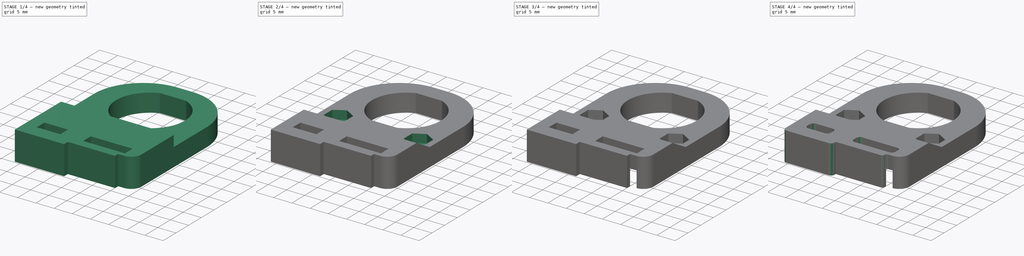
[diagram: build sequence overview — one tinted view per stage of 4, left to right]
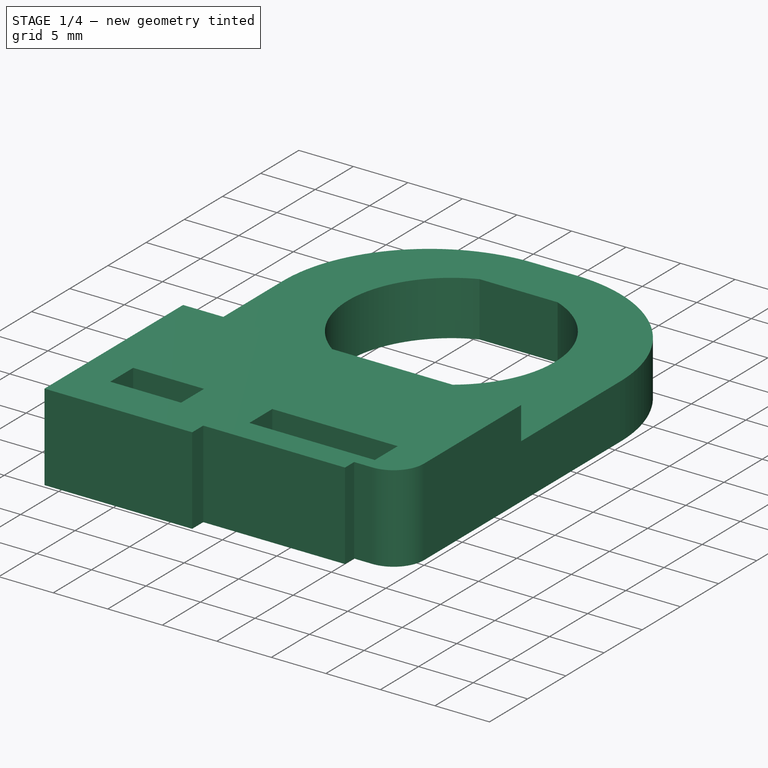
[diagram: stage 1 of 4 — iso view after this stage's code; geometry added in this stage tinted green]
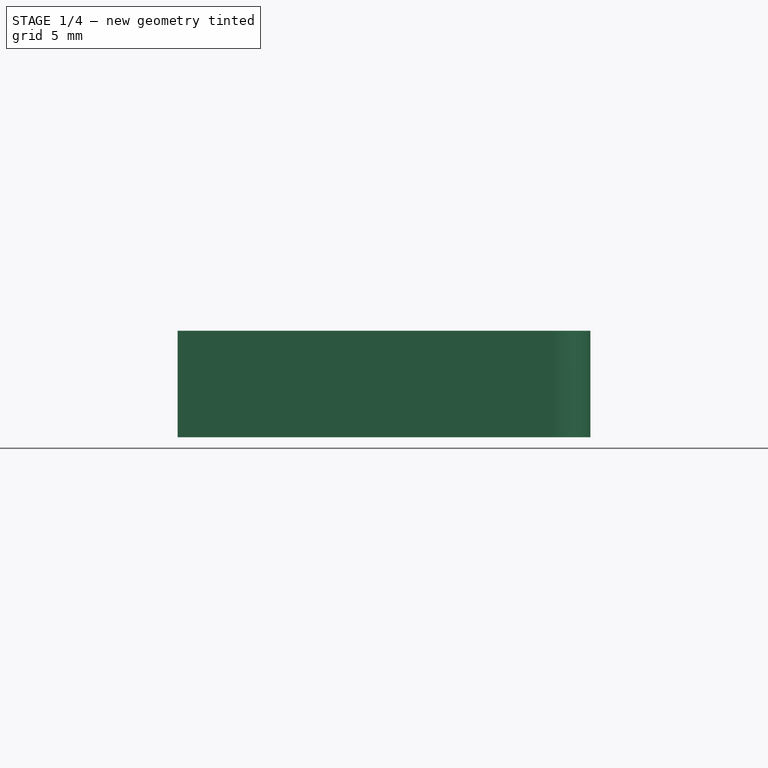
[diagram: stage 1 of 4 — front view after this stage's code; geometry added in this stage tinted green]
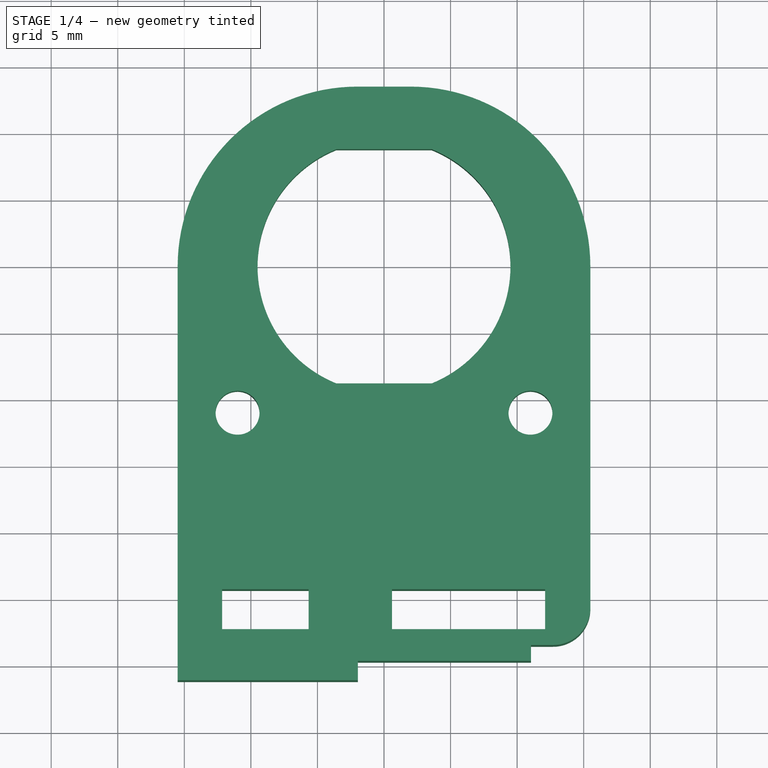
[diagram: stage 1 of 4 — top view after this stage's code; geometry added in this stage tinted green]
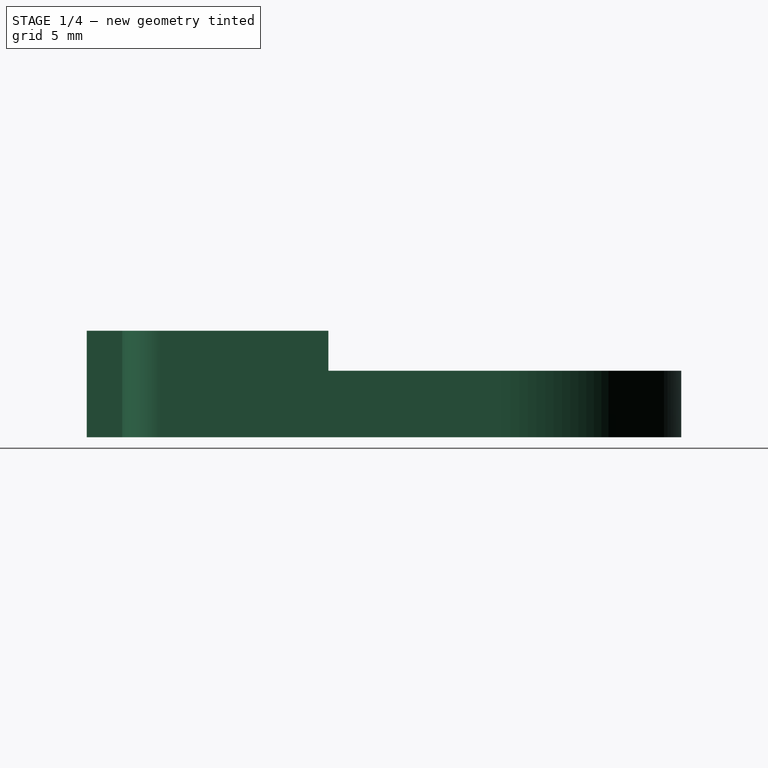
[diagram: stage 1 of 4 — right view after this stage's code; geometry added in this stage tinted green]
FCSTD DOCUMENT  (FreeCAD 0.18.4R)
Label: MJ_3d_holder_left
License: All rights reserved
LicenseURL: http://en.wikipedia.org/wiki/All_rights_reserved
objects: Sketcher::SketchObject×6, PartDesign::Pocket×5, PartDesign::Fillet×2, PartDesign::Pad×1, PartDesign::Draft×1, PartDesign::Body×1
note: 22 computed .brp shape members not serialized (recipe doc carries the construction recipe); baked Part::Feature solids carry a one-line shape summary decoded from their .brp

FEATURE [Sketcher::SketchObject] Sketch
  MapMode = 5
  Support = -> [XY_Plane]
  sketch-geometry (37):
    g0: ArcOfCircle CenterX=0 CenterY=0 CenterZ=0 NormalX=0 NormalY=0 NormalZ=1 AngleXU=0 Radius=9.5 StartAngle=1.95708 EndAngle=4.32611
    g1: LineSegment StartX=-3.57911 StartY=8.8 StartZ=0 EndX=3.57911 EndY=8.8 EndZ=0
    g2: LineSegment StartX=3.57911 StartY=-8.8 StartZ=0 EndX=-3.57911 EndY=-8.8 EndZ=0
    g3: ArcOfCircle CenterX=0 CenterY=0 CenterZ=0 NormalX=0 NormalY=0 NormalZ=1 AngleXU=0 Radius=9.5 StartAngle=5.09867 EndAngle=7.4677
    g4: GeomPoint X=0 Y=-22 Z=0
    g5: LineSegment [constr] StartX=-12.7 StartY=-15.65 StartZ=0 EndX=12.7 EndY=-15.65 EndZ=0
    g6: LineSegment [constr] StartX=12.7 StartY=-15.65 StartZ=0 EndX=12.7 EndY=-28.35 EndZ=0
    g7: LineSegment [constr] StartX=12.7 StartY=-28.35 StartZ=0 EndX=-12.7 EndY=-28.35 EndZ=0
    g8: LineSegment [constr] StartX=-12.7 StartY=-28.35 StartZ=0 EndX=-12.7 EndY=-15.65 EndZ=0
    g9: Circle [constr] CenterX=-10.16 CenterY=-25.81 CenterZ=0 NormalX=0 NormalY=0 NormalZ=1 AngleXU=0 Radius=0.5
    g10: Circle [constr] CenterX=2.54 CenterY=-25.81 CenterZ=0 NormalX=0 NormalY=0 NormalZ=1 AngleXU=0 Radius=0.5
    g11: Circle [constr] CenterX=10.16 CenterY=-25.81 CenterZ=0 NormalX=0 NormalY=0 NormalZ=1 AngleXU=0 Radius=0.5
    g12: Circle CenterX=-11 CenterY=-11 CenterZ=0 NormalX=0 NormalY=0 NormalZ=1 AngleXU=0 Radius=1.65
    g13: Circle CenterX=11 CenterY=-11 CenterZ=0 NormalX=0 NormalY=0 NormalZ=1 AngleXU=0 Radius=1.65
    g14: LineSegment StartX=-2 StartY=13.5 StartZ=0 EndX=2 EndY=13.5 EndZ=0
    g15: LineSegment StartX=15.5 StartY=0 StartZ=0 EndX=15.5 EndY=-25.7 EndZ=0
    g16: LineSegment StartX=-15.5 StartY=-31.15 StartZ=0 EndX=-15.5 EndY=0 EndZ=0
    g17: ArcOfCircle CenterX=-2 CenterY=-8e-16 CenterZ=0 NormalX=0 NormalY=0 NormalZ=1 AngleXU=0 Radius=13.5 StartAngle=1.5708 EndAngle=3.14159
    g18: ArcOfCircle CenterX=2 CenterY=0 CenterZ=0 NormalX=0 NormalY=0 NormalZ=1 AngleXU=0 Radius=13.5 StartAngle=0 EndAngle=1.5708
    g19: LineSegment StartX=-12.16 StartY=-24.31 StartZ=0 EndX=-5.66 EndY=-24.31 EndZ=0
    g20: LineSegment StartX=-5.66 StartY=-24.31 StartZ=0 EndX=-5.66 EndY=-27.31 EndZ=0
    g21: LineSegment StartX=-5.66 StartY=-27.31 StartZ=0 EndX=-12.16 EndY=-27.31 EndZ=0
    g22: LineSegment StartX=-12.16 StartY=-27.31 StartZ=0 EndX=-12.16 EndY=-24.31 EndZ=0
    g23: LineSegment StartX=0.6 StartY=-24.31 StartZ=0 EndX=12.1 EndY=-24.31 EndZ=0
    g24: LineSegment StartX=12.1 StartY=-24.31 StartZ=0 EndX=12.1 EndY=-27.31 EndZ=0
    g25: LineSegment StartX=12.1 StartY=-27.31 StartZ=0 EndX=0.6 EndY=-27.31 EndZ=0
    g26: LineSegment StartX=0.6 StartY=-27.31 StartZ=0 EndX=0.6 EndY=-24.31 EndZ=0
    g27: GeomPoint X=6.35 Y=-25.81 Z=0
    g28: LineSegment StartX=11.04 StartY=-29.7 StartZ=0 EndX=11.04 EndY=-28.5 EndZ=0
    g29: LineSegment StartX=11.04 StartY=-28.5 StartZ=0 EndX=12.7 EndY=-28.5 EndZ=0
    g30: Circle [constr] CenterX=-1e-16 CenterY=-30.89 CenterZ=0 NormalX=0 NormalY=0 NormalZ=1 AngleXU=0 Radius=0.5
    g31: Circle [constr] CenterX=2.54 CenterY=-30.89 CenterZ=0 NormalX=0 NormalY=0 NormalZ=1 AngleXU=0 Radius=0.5
    g32: Circle [constr] CenterX=5.08 CenterY=-30.89 CenterZ=0 NormalX=0 NormalY=0 NormalZ=1 AngleXU=0 Radius=0.5
    g33: LineSegment StartX=-1.96 StartY=-31.15 StartZ=0 EndX=-1.96 EndY=-29.7 EndZ=0
    g34: LineSegment StartX=-1.96 StartY=-29.7 StartZ=0 EndX=11.04 EndY=-29.7 EndZ=0
    g35: LineSegment StartX=-1.96 StartY=-31.15 StartZ=0 EndX=-15.5 EndY=-31.15 EndZ=0
    g36: ArcOfCircle CenterX=12.7 CenterY=-25.7 CenterZ=0 NormalX=0 NormalY=0 NormalZ=1 AngleXU=0 Radius=2.8 StartAngle=4.71239 EndAngle=6.28319
  constraints (101):
    c: Coincident(g0,g-1)
    c: Diameter(g0) = 19
    c: Horizontal(g2)
    c: Coincident(g0,g1)
    c: Coincident(g3,g1)
    c: Symmetric(g0,g3,g-2)
    c: Equal(g1,g2)
    c: Symmetric(g0,g2,g-1)
    c: DistanceY(g2,g3) = 17.6
    c: PointOnObject(g0,g2)
    c: PointOnObject(g3,g2)
    c: Coincident(g0,g3)
    c: PointOnObject(g4,g-2)
    c: DistanceY(g4,g0) = 22
    c: Coincident(g5,g6)
    c: Coincident(g6,g7)
    c: Coincident(g7,g8)
    c: Coincident(g8,g5)
    c: Horizontal(g5)
    c: Horizontal(g7)
    c: Vertical(g6)
    c: Vertical(g8)
    c: DistanceY(g6,g6) = 12.7
    c: DistanceX(g5,g5) = 25.4
    c: Symmetric(g5,g6,g4)
    c: Horizontal(g11,g10)
    c: Horizontal(g10,g9)
    c: Equal(g11,g10)
    c: Equal(g10,g9)
    c: Diameter(g11) = 1
    c: DistanceX(g4,g10) = 2.54
    c: DistanceX(g9,g4) = 10.16
    c: DistanceX(g10,g11) = 7.62
    c: Equal(g13,g12)
    c: Symmetric(g12,g13,g-2)
    c: DistanceX(g12,g13) = 22
    c: Diameter(g13) = 3.3
    c: DistanceY(g12,g0) = 11
    c: Coincident(g35,g16)
    c: Vertical(g15)
    c: Vertical(g16)
    c: Tangent(g16,g17) = 1.5708
    c: Tangent(g14,g17) = 1.5708
    c: Tangent(g14,g18) = 1.5708
    c: Tangent(g15,g18) = 1.5708
    c: Equal(g17,g18)
    c: Radius(g18) = 13.5
    c: Symmetric(g14,g14,g-2)
    c: DistanceX(g16,g5) = 2.8
    c: DistanceY(g35,g7) = 2.8
    c: Coincident(g19,g20)
    c: Coincident(g20,g21)
    c: Coincident(g21,g22)
    c: Coincident(g22,g19)
    c: Horizontal(g19)
    c: Horizontal(g21)
    c: Vertical(g20)
    c: Vertical(g22)
    c: Coincident(g23,g24)
    c: Coincident(g24,g25)
    c: Coincident(g25,g26)
    c: Coincident(g26,g23)
    c: Horizontal(g23)
    c: Horizontal(g25)
    c: Vertical(g24)
    c: Vertical(g26)
    c: Equal(g20,g26)
    c: DistanceY(g22,g22) = 3
    c: DistanceX(g21,g21) = 6.5
    c: DistanceX(g25,g25) = 11.5
    c: DistanceX(g19,g9) = 2
    c: Symmetric(g10,g11,g27)
    c: DistanceY(g10,g4) = 3.81
    c: Horizontal(g19,g23)
    c: Symmetric(g23,g24,g27)
    c: Horizontal(g18,g0)
    c: Vertical(g28)
    c: Coincident(g28,g29)
    c: Horizontal(g29)
    c: Equal(g32,g31)
    c: Equal(g31,g30)
    c: Horizontal(g32,g31)
    c: Horizontal(g31,g30)
    c: Diameter(g30) = 1
    c: Vertical(g31,g10)
    c: DistanceX(g31,g32) = 2.54
    c: DistanceX(g30,g31) = 2.54
    c: DistanceY(g30,g10) = 5.08
    c: Vertical(g33)
    c: Coincident(g33,g34)
    c: Horizontal(g34)
    c: Coincident(g28,g34)
    c: DistanceX(g35,g35) = 13.54
    c: DistanceY(g33,g7) = 1.35
    c: DistanceY(g28,g28) = 1.2
    c: DistanceX(g34,g34) = 13
    c: Tangent(g15,g36) = 1.5708
    c: Tangent(g29,g36) = -1.5708
    c: Vertical(g29,g6)
    c: Horizontal(g35)
    c: Coincident(g33,g35)
FEATURE [PartDesign::Pad] Pad
  Length = 8
  Length2 = 100
  Profile = -> Sketch
  Type = 0
FEATURE [Sketcher::SketchObject] Sketch003
  MapMode = 5
  Placement = pos=(0,0,8) rot=(0,0,1;0rad)
  Support = -> [Pad]
  sketch-geometry (9):
    g0: GeomPoint X=0 Y=-22 Z=0
    g1: LineSegment [constr] StartX=-12.7 StartY=-15.65 StartZ=0 EndX=12.7 EndY=-15.65 EndZ=0
    g2: LineSegment [constr] StartX=12.7 StartY=-15.65 StartZ=0 EndX=12.7 EndY=-28.35 EndZ=0
    g3: LineSegment [constr] StartX=12.7 StartY=-28.35 StartZ=0 EndX=-12.7 EndY=-28.35 EndZ=0
    g4: LineSegment [constr] StartX=-12.7 StartY=-28.35 StartZ=0 EndX=-12.7 EndY=-15.65 EndZ=0
    g5: LineSegment StartX=-15.5 StartY=-13 StartZ=0 EndX=15.5 EndY=-13 EndZ=0
    g6: LineSegment StartX=15.5 StartY=-13 StartZ=0 EndX=15.5 EndY=13.5 EndZ=0
    g7: LineSegment StartX=15.5 StartY=13.5 StartZ=0 EndX=-15.5 EndY=13.5 EndZ=0
    g8: LineSegment StartX=-15.5 StartY=13.5 StartZ=0 EndX=-15.5 EndY=-13 EndZ=0
  constraints (24):
    c: PointOnObject(g0,g-2)
    c: DistanceY(g0,g-1) = 22
    c: Coincident(g1,g2)
    c: Coincident(g2,g3)
    c: Coincident(g3,g4)
    c: Coincident(g4,g1)
    c: Horizontal(g1)
    c: Horizontal(g3)
    c: Vertical(g2)
    c: Vertical(g4)
    c: DistanceY(g2,g2) = 12.7
    c: DistanceX(g3,g3) = 25.4
    c: Symmetric(g1,g2,g0)
    c: Coincident(g5,g6)
    c: Coincident(g6,g7)
    c: Coincident(g7,g8)
    c: Coincident(g8,g5)
    c: Horizontal(g7)
    c: Vertical(g6)
    c: Vertical(g8)
    c: DistanceX(g5,g5) = 31
    c: Symmetric(g5,g5,g-2)
    c: DistanceY(g5,g-1) = 13
    c: DistanceY(g-1,g6) = 13.5
FEATURE [PartDesign::Pocket] Pocket
  BaseFeature = -> Pad
  Length = 3
  Length2 = 100
  Profile = -> Sketch003
  Type = 0
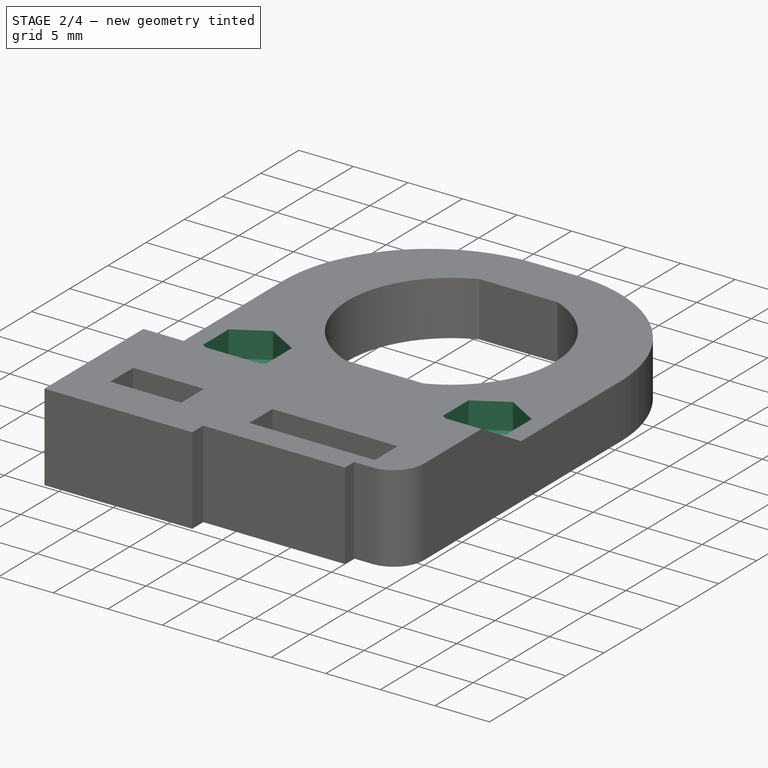
[diagram: stage 2 of 4 — iso view after this stage's code; geometry added in this stage tinted green]
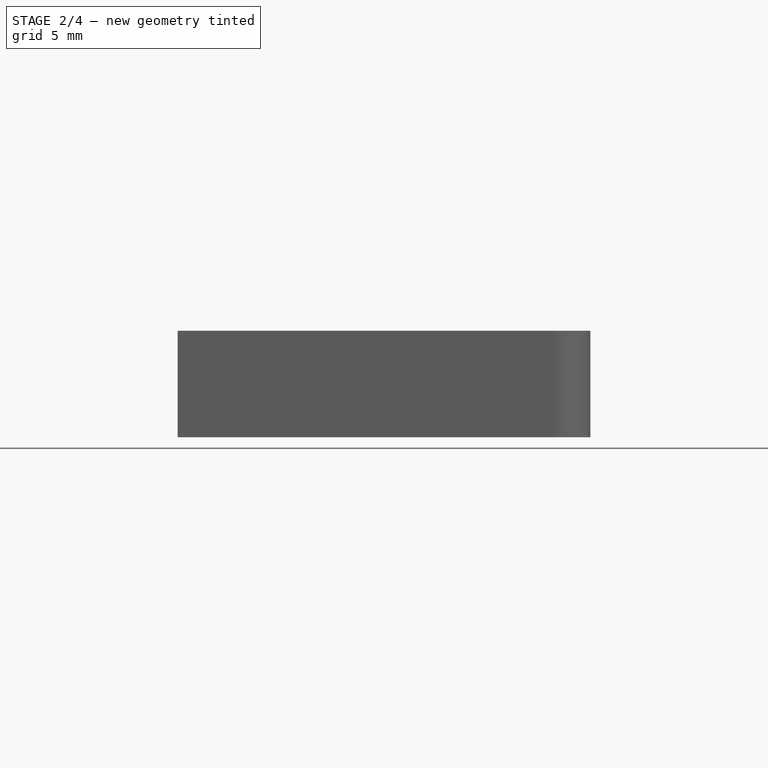
[diagram: stage 2 of 4 — front view after this stage's code; geometry added in this stage tinted green]
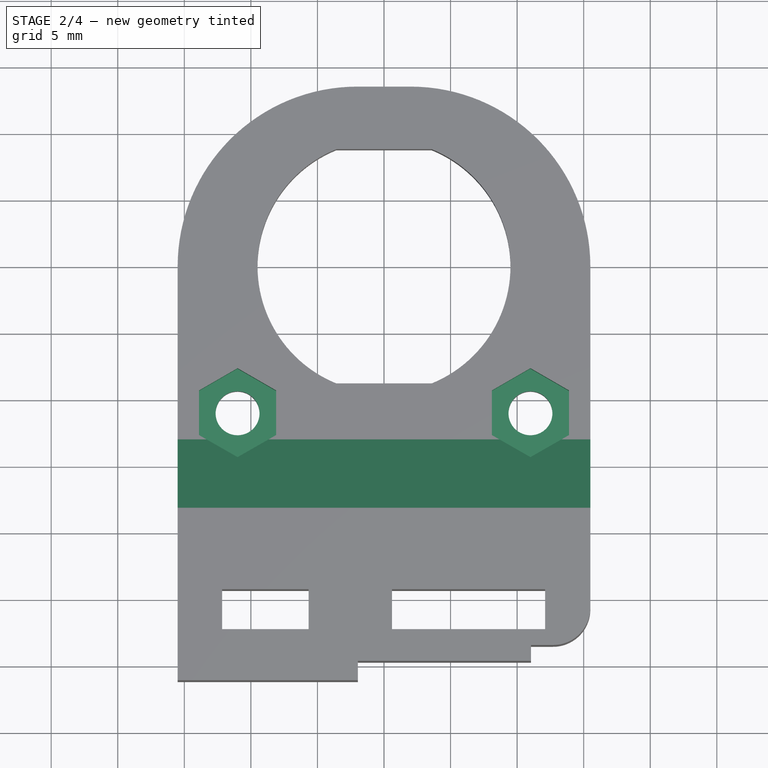
[diagram: stage 2 of 4 — top view after this stage's code; geometry added in this stage tinted green]
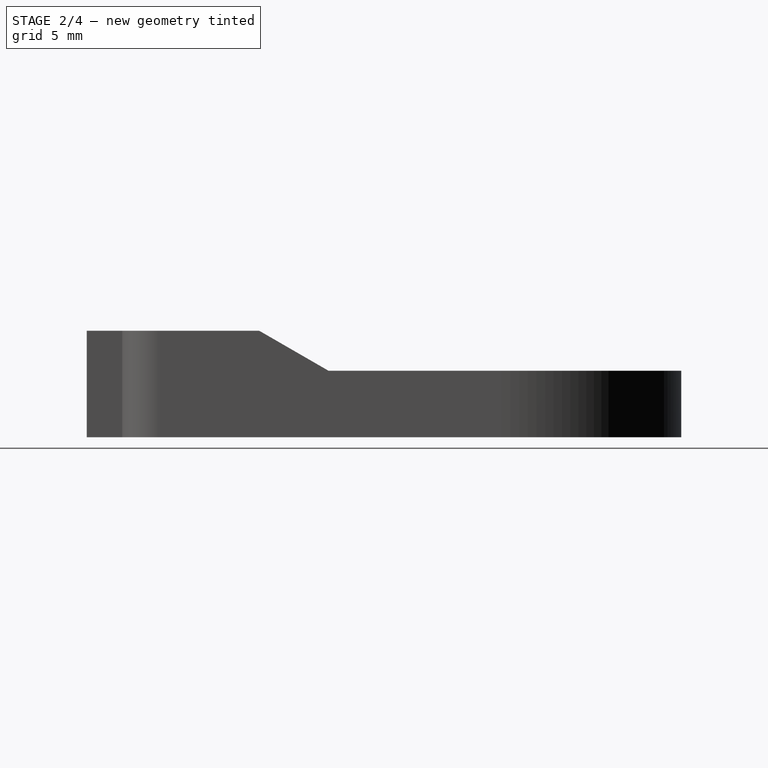
[diagram: stage 2 of 4 — right view after this stage's code; geometry added in this stage tinted green]
FEATURE [Sketcher::SketchObject] Sketch001
  MapMode = 5
  Placement = pos=(0,0,5) rot=(0,0,1;0rad)
  Support = -> [Pocket]
  sketch-geometry (14):
    g0: LineSegment StartX=-8.1 StartY=-12.6743 StartZ=0 EndX=-8.1 EndY=-9.32568 EndZ=0
    g1: LineSegment StartX=-8.1 StartY=-9.32568 StartZ=0 EndX=-11 EndY=-7.65137 EndZ=0
    g2: LineSegment StartX=-11 StartY=-7.65137 StartZ=0 EndX=-13.9 EndY=-9.32568 EndZ=0
    g3: LineSegment StartX=-13.9 StartY=-9.32568 StartZ=0 EndX=-13.9 EndY=-12.6743 EndZ=0
    g4: LineSegment StartX=-13.9 StartY=-12.6743 StartZ=0 EndX=-11 EndY=-14.3486 EndZ=0
    g5: LineSegment StartX=-11 StartY=-14.3486 StartZ=0 EndX=-8.1 EndY=-12.6743 EndZ=0
    g6: Circle [constr] CenterX=-11 CenterY=-11 CenterZ=0 NormalX=0 NormalY=0 NormalZ=1 AngleXU=0 Radius=3.34863
    g7: LineSegment StartX=13.9 StartY=-12.6743 StartZ=0 EndX=13.9 EndY=-9.32568 EndZ=0
    g8: LineSegment StartX=13.9 StartY=-9.32568 StartZ=0 EndX=11 EndY=-7.65137 EndZ=0
    g9: LineSegment StartX=11 StartY=-7.65137 StartZ=0 EndX=8.1 EndY=-9.32568 EndZ=0
    g10: LineSegment StartX=8.1 StartY=-9.32568 StartZ=0 EndX=8.1 EndY=-12.6743 EndZ=0
    g11: LineSegment StartX=8.1 StartY=-12.6743 StartZ=0 EndX=11 EndY=-14.3486 EndZ=0
    g12: LineSegment StartX=11 StartY=-14.3486 StartZ=0 EndX=13.9 EndY=-12.6743 EndZ=0
    g13: Circle [constr] CenterX=11 CenterY=-11 CenterZ=0 NormalX=0 NormalY=0 NormalZ=1 AngleXU=0 Radius=3.34863
  constraints (33):
    c: Coincident(g0,g1)
    c: Coincident(g1,g2)
    c: Coincident(g2,g3)
    c: Coincident(g3,g4)
    c: Coincident(g4,g5)
    c: Coincident(g5,g0)
    c: Equal(g0, g1-g5) x5
    c: PointOnObject(g0,g6)
    c: PointOnObject(g1,g6)
    c: PointOnObject(g2,g6)
    c: PointOnObject(g3,g6)
    c: PointOnObject(g4,g6)
    c: PointOnObject(g5,g6)
    c: Coincident(g7,g8)
    c: Coincident(g8,g9)
    c: Coincident(g9,g10)
    c: Coincident(g10,g11)
    c: Coincident(g11,g12)
    c: Coincident(g12,g7)
    c: Equal(g7, g8-g12) x5
    c: PointOnObject(g7,g13)
    c: PointOnObject(g8,g13)
    c: PointOnObject(g9,g13)
    c: PointOnObject(g10,g13)
    c: PointOnObject(g11,g13)
    c: PointOnObject(g12,g13)
    c: DistanceX(g6,g13) = 22
    c: Symmetric(g6,g13,g-2)
    c: DistanceY(g13,g-1) = 11
    c: DistanceX(g3,g0) = 5.8
    c: DistanceX(g10,g7) = 5.8
    c: Vertical(g3)
    c: Vertical(g7)
FEATURE [PartDesign::Draft] Draft
  Angle = 60
  Base = -> Pocket [Face9]
  BaseFeature = -> Pocket
  NeutralPlane = -> Pocket [Face8]
FEATURE [PartDesign::Pocket] Pocket001
  BaseFeature = -> Draft
  Length = 4.8
  Length2 = 100
  Midplane = true
  Profile = -> Sketch001
  Type = 0
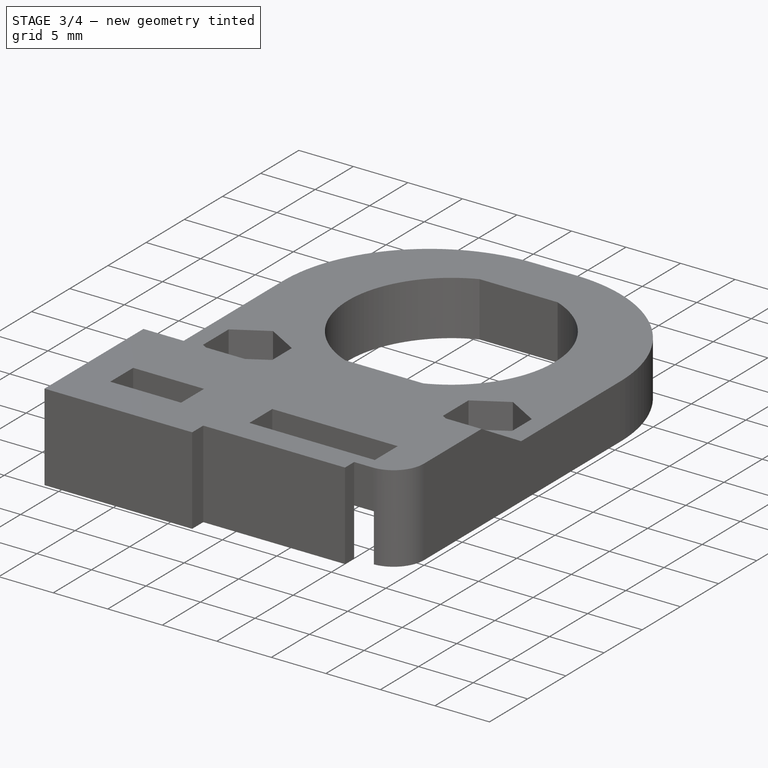
[diagram: stage 3 of 4 — iso view after this stage's code; geometry added in this stage tinted green]
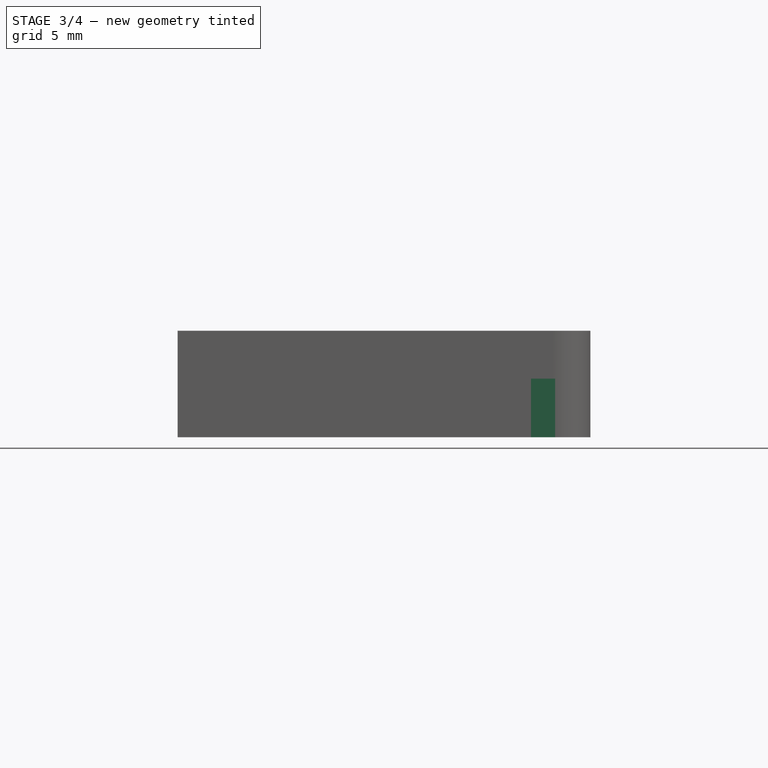
[diagram: stage 3 of 4 — front view after this stage's code; geometry added in this stage tinted green]
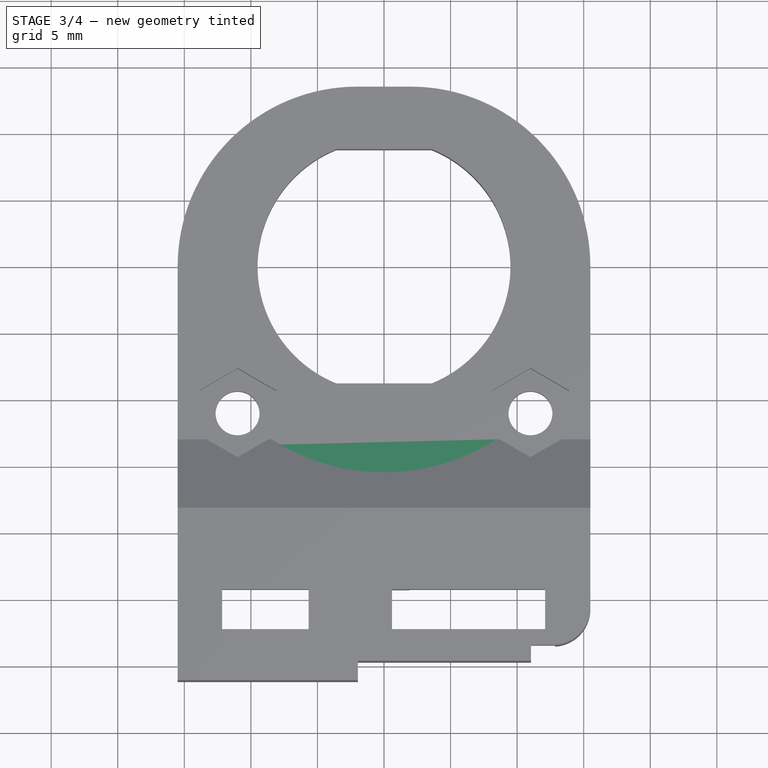
[diagram: stage 3 of 4 — top view after this stage's code; geometry added in this stage tinted green]
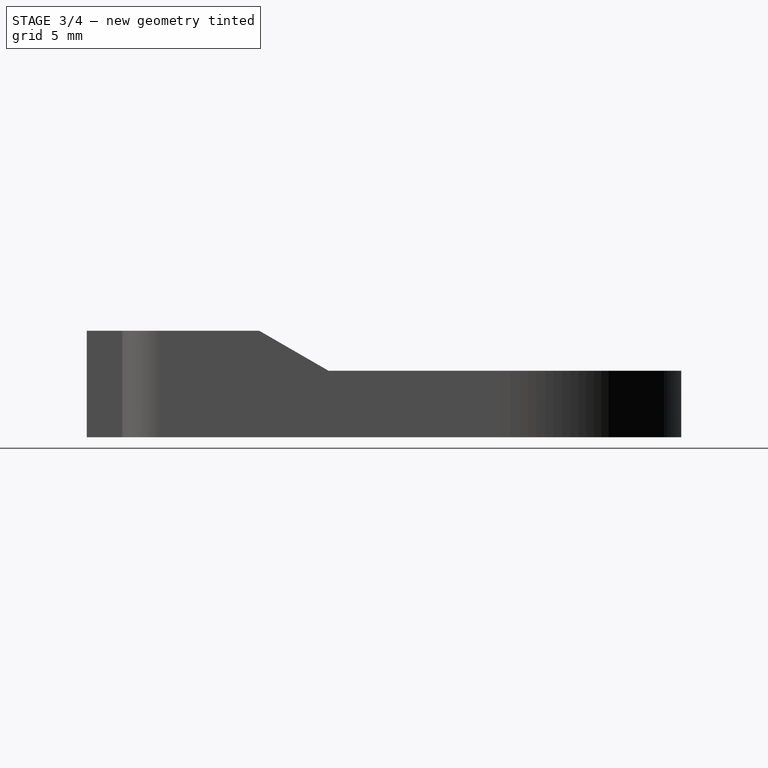
[diagram: stage 3 of 4 — right view after this stage's code; geometry added in this stage tinted green]
FEATURE [Sketcher::SketchObject] Sketch004
  MapMode = 5
  Placement = pos=(0,0,5) rot=(0,0,1;0rad)
  Support = -> [Pocket001]
  sketch-geometry (1):
    g0: Circle CenterX=0 CenterY=0 CenterZ=0 NormalX=0 NormalY=0 NormalZ=1 AngleXU=0 Radius=15.5
  constraints (2):
    c: Coincident(g0,g-1)
    c: Diameter(g0) = 31
FEATURE [PartDesign::Pocket] Pocket002
  BaseFeature = -> Pocket001
  Length = 3
  Length2 = 100
  Profile = -> Sketch004
  Reversed = true
  Type = 0
FEATURE [Sketcher::SketchObject] Sketch005
  MapMode = 5
  Placement = pos=(0,0,0) rot=(1,0,0;3.14159rad)
  Support = -> [Pocket002]
  sketch-geometry (5):
    g0: GeomPoint X=0 Y=22 Z=0
    g1: LineSegment StartX=12.85 StartY=15.5 StartZ=0 EndX=-12.85 EndY=15.5 EndZ=0
    g2: LineSegment StartX=-12.85 StartY=15.5 StartZ=0 EndX=-12.85 EndY=28.5 EndZ=0
    g3: LineSegment StartX=-12.85 StartY=28.5 StartZ=0 EndX=12.85 EndY=28.5 EndZ=0
    g4: LineSegment StartX=12.85 StartY=28.5 StartZ=0 EndX=12.85 EndY=15.5 EndZ=0
  constraints (13):
    c: PointOnObject(g0,g-2)
    c: DistanceY(g-1,g0) = 22
    c: Coincident(g1,g2)
    c: Coincident(g2,g3)
    c: Coincident(g3,g4)
    c: Coincident(g4,g1)
    c: Horizontal(g1)
    c: Horizontal(g3)
    c: Vertical(g2)
    c: Vertical(g4)
    c: DistanceY(g2,g2) = 13
    c: DistanceX(g3,g3) = 25.7
    c: Symmetric(g1,g2,g0)
FEATURE [PartDesign::Pocket] Pocket003
  BaseFeature = -> Pocket002
  Length = 3
  Length2 = 100
  Profile = -> Sketch005
  Type = 0
FEATURE [Sketcher::SketchObject] Sketch006
  MapMode = 5
  Placement = pos=(0,0,3) rot=(1,0,0;3.14159rad)
  Support = -> [Pocket003]
  sketch-geometry (35):
    g0: GeomPoint X=0 Y=22 Z=0
    g1: LineSegment [constr] StartX=12.85 StartY=15.5 StartZ=0 EndX=-12.85 EndY=15.5 EndZ=0
    g2: LineSegment [constr] StartX=-12.85 StartY=15.5 StartZ=0 EndX=-12.85 EndY=28.5 EndZ=0
    g3: LineSegment [constr] StartX=-12.85 StartY=28.5 StartZ=0 EndX=12.85 EndY=28.5 EndZ=0
    g4: LineSegment [constr] StartX=12.85 StartY=28.5 StartZ=0 EndX=12.85 EndY=15.5 EndZ=0
    g5: LineSegment [constr] StartX=12.85 StartY=20.5 StartZ=0 EndX=-12.85 EndY=20.5 EndZ=0
    g6: LineSegment [constr] StartX=-12.85 StartY=20.5 StartZ=0 EndX=-12.85 EndY=23.5 EndZ=0
    g7: LineSegment [constr] StartX=-12.85 StartY=23.5 StartZ=0 EndX=12.85 EndY=23.5 EndZ=0
    g8: LineSegment [constr] StartX=12.85 StartY=23.5 StartZ=0 EndX=12.85 EndY=20.5 EndZ=0
    g9: LineSegment [constr] StartX=1.5 StartY=15.5 StartZ=0 EndX=-1.5 EndY=15.5 EndZ=0
    g10: LineSegment [constr] StartX=-1.5 StartY=15.5 StartZ=0 EndX=-1.5 EndY=28.5 EndZ=0
    g11: LineSegment [constr] StartX=-1.5 StartY=28.5 StartZ=0 EndX=1.5 EndY=28.5 EndZ=0
    g12: LineSegment [constr] StartX=1.5 StartY=28.5 StartZ=0 EndX=1.5 EndY=15.5 EndZ=0
    g13: GeomPoint X=12.85 Y=22 Z=0
    g14: Circle CenterX=0 CenterY=22 CenterZ=0 NormalX=0 NormalY=0 NormalZ=1 AngleXU=0 Radius=1.8
    g15: LineSegment StartX=-12.85 StartY=20.5 StartZ=0 EndX=-3.5 EndY=20.5 EndZ=0
    g16: LineSegment StartX=-1.5 StartY=18.5 StartZ=0 EndX=-1.5 EndY=15.5 EndZ=0
    g17: LineSegment StartX=-1.5 StartY=15.5 StartZ=0 EndX=-12.85 EndY=15.5 EndZ=0
    g18: LineSegment StartX=-12.85 StartY=15.5 StartZ=0 EndX=-12.85 EndY=20.5 EndZ=0
    g19: LineSegment StartX=1.5 StartY=15.5 StartZ=0 EndX=12.85 EndY=15.5 EndZ=0
    g20: LineSegment StartX=12.85 StartY=15.5 StartZ=0 EndX=12.85 EndY=20.5 EndZ=0
    g21: LineSegment StartX=12.85 StartY=20.5 StartZ=0 EndX=3.5 EndY=20.5 EndZ=0
    g22: LineSegment StartX=1.5 StartY=18.5 StartZ=0 EndX=1.5 EndY=15.5 EndZ=0
    g23: LineSegment StartX=-12.85 StartY=23.5 StartZ=0 EndX=-3.5 EndY=23.5 EndZ=0
    g24: LineSegment StartX=-1.5 StartY=25.5 StartZ=0 EndX=-1.5 EndY=28.5 EndZ=0
    g25: LineSegment StartX=-1.5 StartY=28.5 StartZ=0 EndX=-12.85 EndY=28.5 EndZ=0
    g26: LineSegment StartX=-12.85 StartY=28.5 StartZ=0 EndX=-12.85 EndY=23.5 EndZ=0
    g27: LineSegment StartX=1.5 StartY=28.5 StartZ=0 EndX=12.85 EndY=28.5 EndZ=0
    g28: LineSegment StartX=12.85 StartY=28.5 StartZ=0 EndX=12.85 EndY=23.5 EndZ=0
    g29: LineSegment StartX=12.85 StartY=23.5 StartZ=0 EndX=3.5 EndY=23.5 EndZ=0
    g30: LineSegment StartX=1.5 StartY=25.5 StartZ=0 EndX=1.5 EndY=28.5 EndZ=0
    g31: ArcOfCircle CenterX=3.5 CenterY=25.5 CenterZ=0 NormalX=0 NormalY=0 NormalZ=1 AngleXU=0 Radius=2 StartAngle=3.14159 EndAngle=4.71239
    g32: ArcOfCircle CenterX=3.5 CenterY=18.5 CenterZ=0 NormalX=0 NormalY=0 NormalZ=1 AngleXU=0 Radius=2 StartAngle=1.5708 EndAngle=3.14159
    g33: ArcOfCircle CenterX=-3.5 CenterY=18.5 CenterZ=0 NormalX=0 NormalY=0 NormalZ=1 AngleXU=0 Radius=2 StartAngle=6e-16 EndAngle=1.5708
    g34: ArcOfCircle CenterX=-3.5 CenterY=25.5 CenterZ=0 NormalX=0 NormalY=0 NormalZ=1 AngleXU=0 Radius=2 StartAngle=4.71239 EndAngle=6.28319
  constraints (87):
    c: PointOnObject(g0,g-2)
    c: DistanceY(g-1,g0) = 22
    c: Coincident(g1,g2)
    c: Coincident(g2,g3)
    c: Coincident(g3,g4)
    c: Coincident(g4,g1)
    c: Horizontal(g1)
    c: Horizontal(g3)
    c: Vertical(g2)
    c: Vertical(g4)
    c: DistanceY(g2,g2) = 13
    c: DistanceX(g1,g1) = 25.7
    c: Symmetric(g1,g2,g0)
    c: Coincident(g5,g6)
    c: Coincident(g6,g7)
    c: Coincident(g7,g8)
    c: Coincident(g8,g5)
    c: Horizontal(g5)
    c: Horizontal(g7)
    c: Vertical(g6)
    c: Vertical(g8)
    c: PointOnObject(g5,g4)
    c: PointOnObject(g6,g2)
    c: Coincident(g9,g10)
    c: Coincident(g10,g11)
    c: Coincident(g11,g12)
    c: Coincident(g12,g9)
    c: Horizontal(g11)
    c: Vertical(g10)
    c: Vertical(g12)
    c: PointOnObject(g9,g1)
    c: PointOnObject(g10,g3)
    c: DistanceY(g5,g7) = 3
    c: DistanceX(g9,g9) = 3
    c: Symmetric(g9,g9,g-2)
    c: Symmetric(g5,g7,g13)
    c: Horizontal(g13,g0)
    c: Coincident(g14,g0)
    c: Diameter(g14) = 3.6
    c: Coincident(g16,g17)
    c: Coincident(g17,g18)
    c: Coincident(g18,g15)
    c: Horizontal(g15)
    c: Horizontal(g17)
    c: Vertical(g16)
    c: Vertical(g18)
    c: Coincident(g15,g5)
    c: Coincident(g16,g9)
    c: Coincident(g19,g20)
    c: Coincident(g20,g21)
    c: Coincident(g22,g19)
    c: Horizontal(g19)
    c: Horizontal(g21)
    c: Vertical(g20)
    c: Vertical(g22)
    c: Coincident(g19,g9)
    c: Coincident(g20,g5)
    c: Coincident(g24,g25)
    c: Coincident(g25,g26)
    c: Coincident(g26,g23)
    c: Horizontal(g23)
    c: Horizontal(g25)
    c: Vertical(g24)
    c: Vertical(g26)
    c: Coincident(g23,g6)
    c: Coincident(g24,g10)
    c: Coincident(g27,g28)
    c: Coincident(g28,g29)
    c: Coincident(g30,g27)
    c: Horizontal(g27)
    c: Horizontal(g29)
    c: Vertical(g28)
    c: Vertical(g30)
    c: Coincident(g27,g11)
    c: Coincident(g28,g7)
    c: Tangent(g30,g31) = 1.5708
    c: Tangent(g29,g31) = 1.5708
    c: Tangent(g21,g32) = -1.5708
    c: Tangent(g22,g32) = -1.5708
    c: Tangent(g16,g33) = 1.5708
    c: Tangent(g15,g33) = 1.5708
    c: Tangent(g23,g34) = -1.5708
    c: Tangent(g24,g34) = -1.5708
    c: Equal(g34,g31)
    c: Equal(g31,g32)
    c: Equal(g32,g33)
    c: Radius(g31) = 2
FEATURE [PartDesign::Pocket] Pocket004
  BaseFeature = -> Pocket003
  Length = 1.4
  Length2 = 100
  Profile = -> Sketch006
  Type = 0
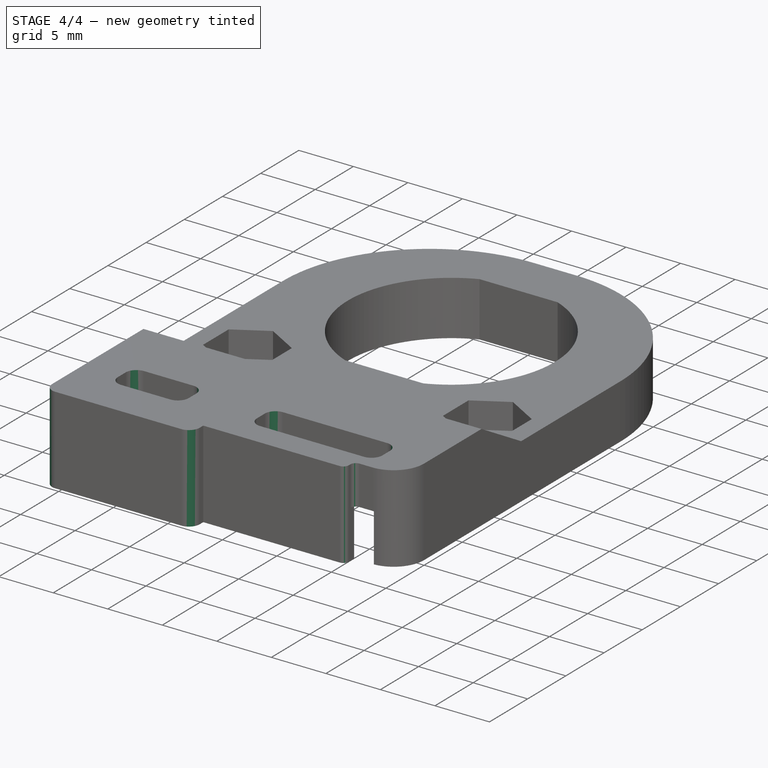
[diagram: stage 4 of 4 — iso view after this stage's code; geometry added in this stage tinted green]
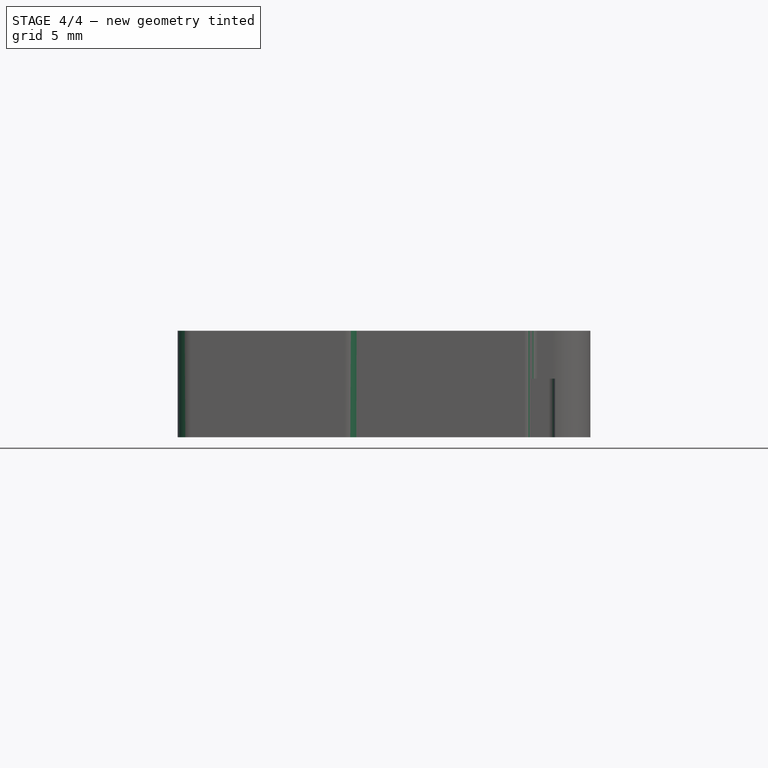
[diagram: stage 4 of 4 — front view after this stage's code; geometry added in this stage tinted green]
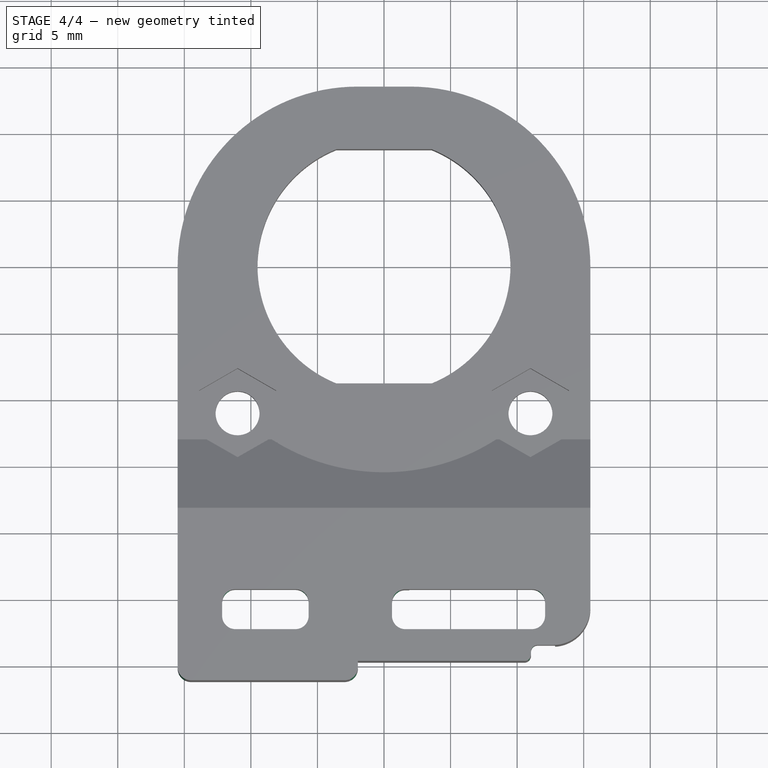
[diagram: stage 4 of 4 — top view after this stage's code; geometry added in this stage tinted green]
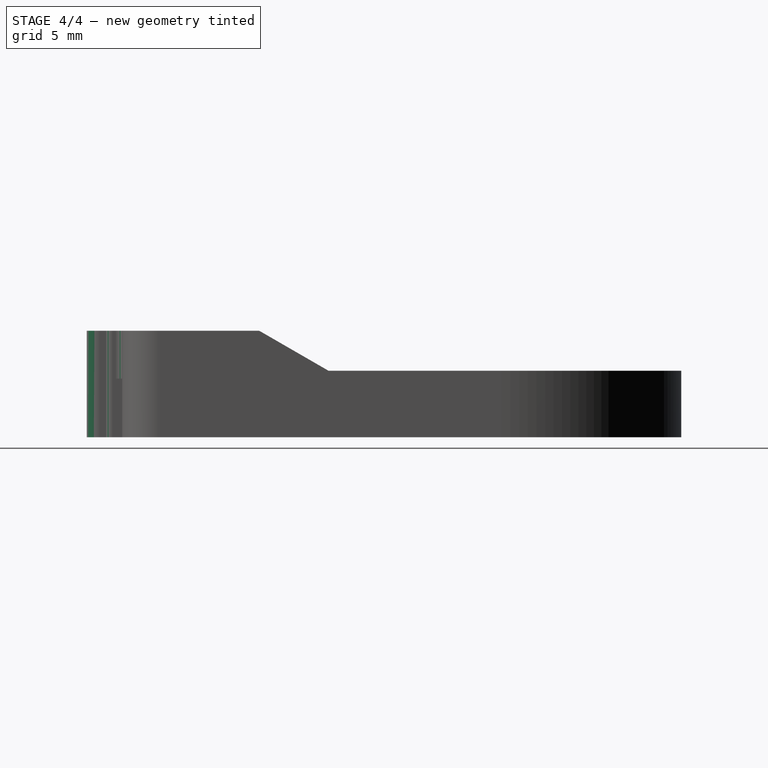
[diagram: stage 4 of 4 — right view after this stage's code; geometry added in this stage tinted green]
FEATURE [PartDesign::Fillet] Fillet
  Base = -> Pocket004 [Edge2,Edge120,Edge103,Edge108,Edge111,Edge112,Edge104,Edge114,Edge106,Edge1]
  BaseFeature = -> Pocket004
  Radius = 1
FEATURE [PartDesign::Fillet] Fillet001
  Base = -> Fillet [Edge55,Edge58,Edge132,Edge192,Edge173,Edge171,Edge194,Edge170,Edge66,Edge151,Edge62,Edge188,Edge72]
  BaseFeature = -> Fillet
  Radius = 0.5
FEATURE [PartDesign::Body] Body  label="3d_holder_left"
  Group = -> [Sketch,Pad,Sketch001,Sketch003,Pocket,Draft,Pocket001,Sketch004,Pocket002,Sketch005,Pocket003,Sketch006,Pocket004,Fillet,Fillet001]
  Origin = -> Origin
  Tip = -> Fillet001
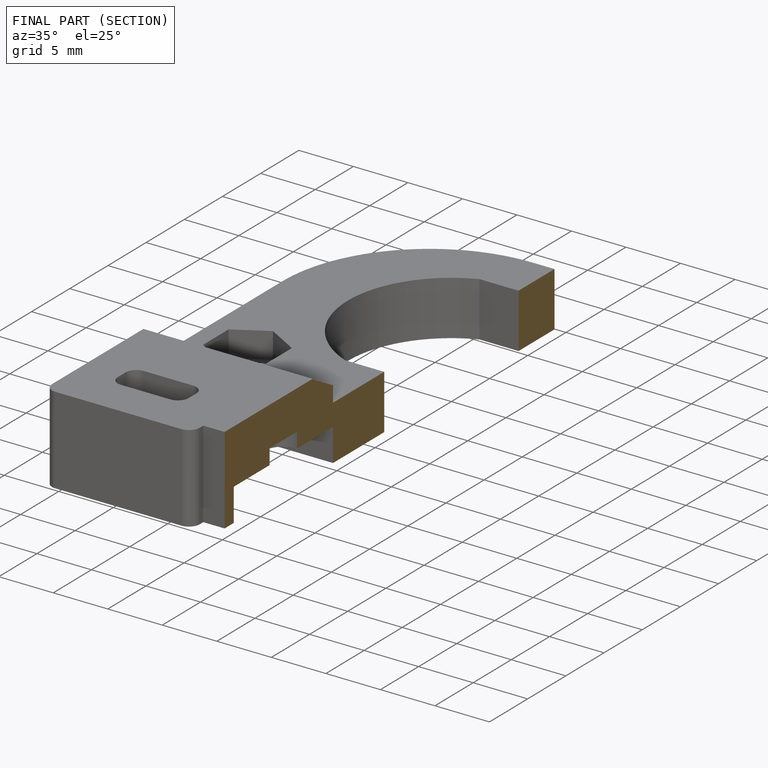
[diagram: finished part — half-section view (interior)]
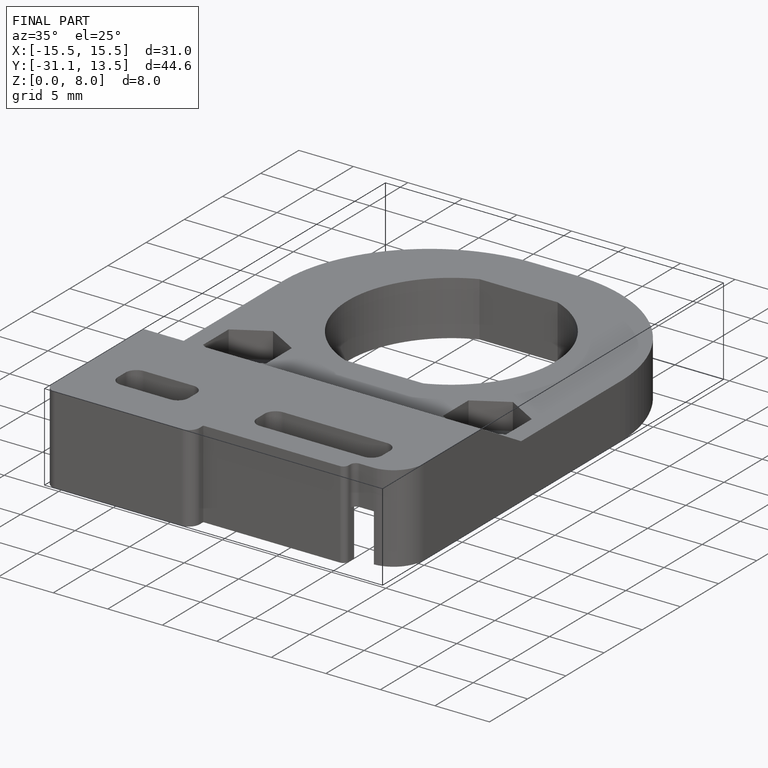
[diagram: finished part — iso view with bounding-box wireframe]
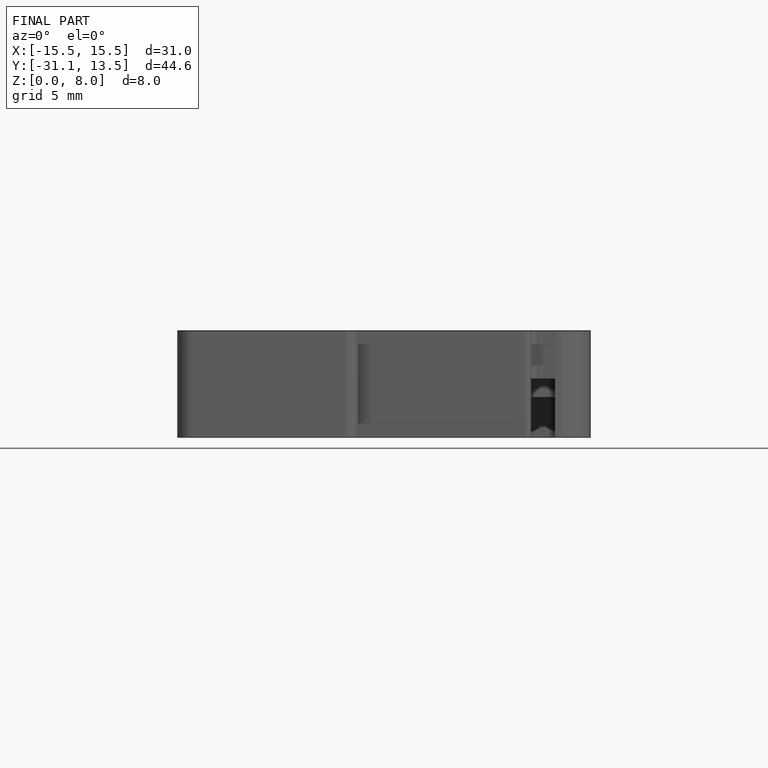
[diagram: finished part — front view with bounding-box wireframe]
